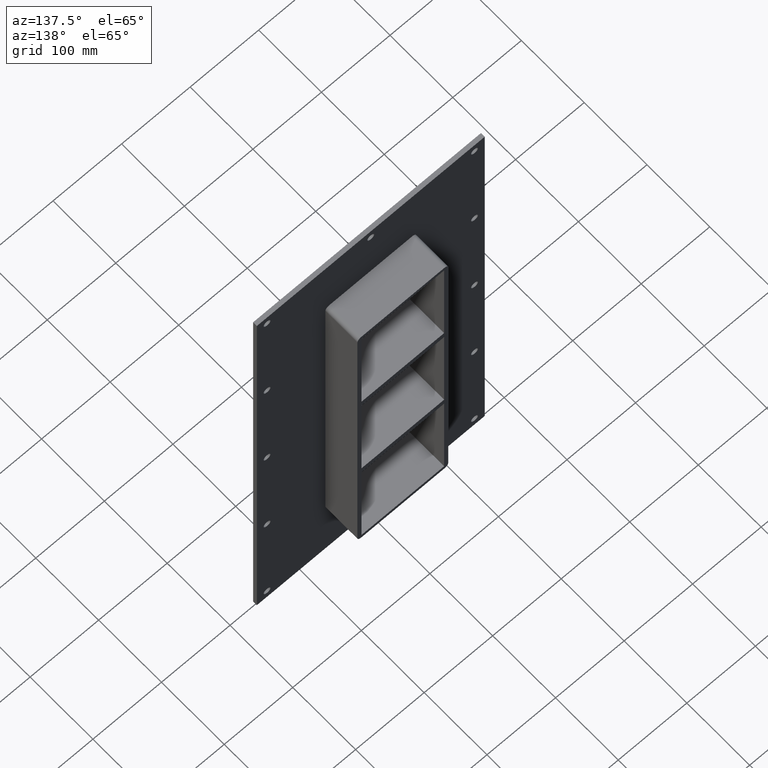
[diagram: clean part render]
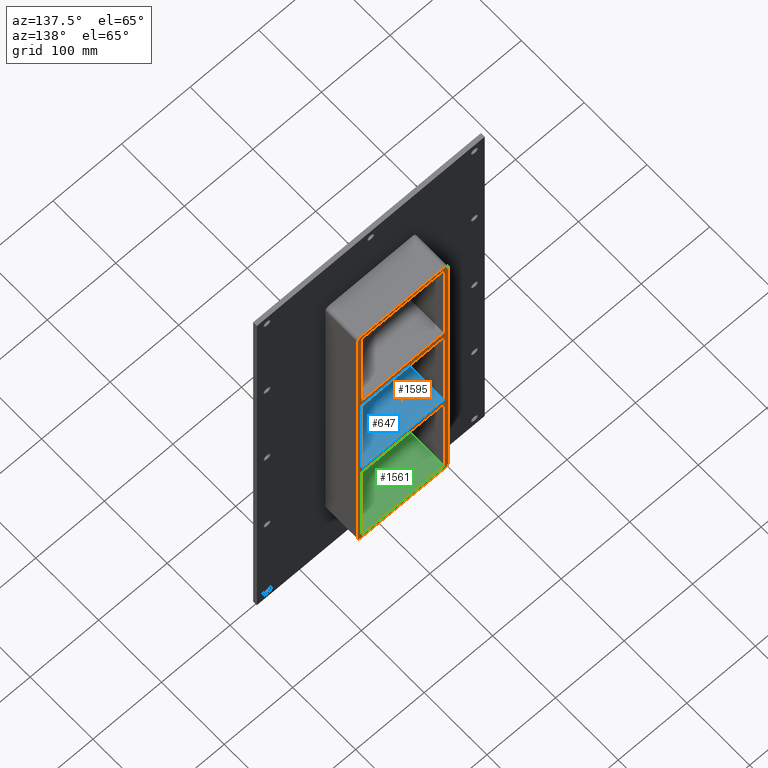
[diagram: same view with three faces highlighted in distinct colors, each labeled with its STEP entity id]
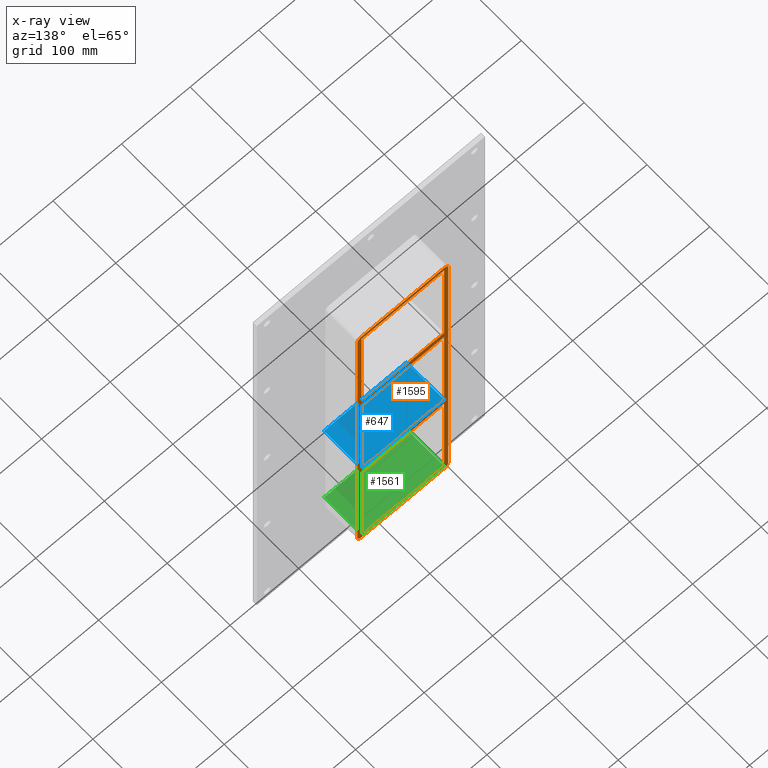
[diagram: x-ray of the same camera — body ghosted, the three highlighted faces saturated]
A machine part, auxiliary view with three faces highlighted in distinct colors.
The next image is the same camera in x-ray (body ghosted, the three faces saturated) — at least one of them is partly hidden behind the body in this view.
Their STEP definitions:

[orange] entity #1595 — the highlighted planar face has unit normal (0, 1, 0).
#419=CARTESIAN_POINT('',(-60.249999999999687,57.0,79.749999999990706));
#420=VERTEX_POINT('',#419);
#427=CARTESIAN_POINT('',(60.249999999996362,57.0,79.749999999990763));
#428=VERTEX_POINT('',#427);
#429=CARTESIAN_POINT('',(60.249999999996362,57.0,79.749999999990763));
#430=DIRECTION('',(-1.0,0.0,0.0));
#431=VECTOR('',#430,120.49999999999605);
#432=LINE('',#429,#431);
#433=EDGE_CURVE('',#428,#420,#432,.T.);
#459=CARTESIAN_POINT('',(60.249999999999901,57.0,89.750000000000085));
#460=VERTEX_POINT('',#459);
#467=CARTESIAN_POINT('',(-60.249999999999687,57.0,89.750000000000085));
#468=VERTEX_POINT('',#467);
#469=CARTESIAN_POINT('',(-60.249999999999687,57.0,89.750000000000085));
#470=DIRECTION('',(1.0,0.0,0.0));
#471=VECTOR('',#470,120.49999999999957);
#472=LINE('',#469,#471);
#473=EDGE_CURVE('',#468,#460,#472,.T.);
#490=CARTESIAN_POINT('',(-60.249999999999986,57.0,249.25000000000009));
#491=VERTEX_POINT('',#490);
#492=CARTESIAN_POINT('',(-60.249999999999986,57.0,249.25000000000011));
#493=DIRECTION('',(0.0,0.0,-1.0));
#494=VECTOR('',#493,159.50000000000006);
#495=LINE('',#492,#494);
#496=EDGE_CURVE('',#491,#468,#495,.T.);
#521=CARTESIAN_POINT('',(60.249999999999901,57.0,-79.749999999999943));
#522=VERTEX_POINT('',#521);
#523=CARTESIAN_POINT('',(60.249999999999986,57.0,-79.749999999999943));
#524=DIRECTION('',(0.0,0.0,1.0));
#525=VECTOR('',#524,159.49999999999071);
#526=LINE('',#523,#525);
#527=EDGE_CURVE('',#522,#428,#526,.T.);
#560=CARTESIAN_POINT('',(60.249999999999986,57.0,249.25000000000009));
#561=VERTEX_POINT('',#560);
#568=CARTESIAN_POINT('',(60.249999999999986,57.0,89.750000000000085));
#569=DIRECTION('',(0.0,0.0,1.0));
#570=VECTOR('',#569,159.5);
#571=LINE('',#568,#570);
#572=EDGE_CURVE('',#460,#561,#571,.T.);
#592=CARTESIAN_POINT('',(-60.249999999999687,57.0,-89.750000000009322));
#593=VERTEX_POINT('',#592);
#600=CARTESIAN_POINT('',(60.249999999996362,57.0,-89.750000000009265));
#601=VERTEX_POINT('',#600);
#602=CARTESIAN_POINT('',(60.249999999996362,57.0,-89.750000000009265));
#603=DIRECTION('',(-1.0,0.0,0.0));
#604=VECTOR('',#603,120.49999999999605);
#605=LINE('',#602,#604);
#606=EDGE_CURVE('',#601,#593,#605,.T.);
#631=CARTESIAN_POINT('',(-60.249999999999687,57.0,-79.749999999999943));
#632=VERTEX_POINT('',#631);
#633=CARTESIAN_POINT('',(-60.249999999999687,57.0,-79.749999999999943));
#634=DIRECTION('',(1.0,0.0,0.0));
#635=VECTOR('',#634,120.49999999999957);
#636=LINE('',#633,#635);
#637=EDGE_CURVE('',#632,#522,#636,.T.);
#661=CARTESIAN_POINT('',(-60.249999999999986,57.0,79.749999999990678));
#662=DIRECTION('',(0.0,0.0,-1.0));
#663=VECTOR('',#662,159.49999999999062);
#664=LINE('',#661,#663);
#665=EDGE_CURVE('',#420,#632,#664,.T.);
#676=CARTESIAN_POINT('',(60.249999999999986,57.0,-249.25));
#677=VERTEX_POINT('',#676);
#678=CARTESIAN_POINT('',(60.249999999999986,57.0,-249.24999999999997));
#679=DIRECTION('',(0.0,0.0,1.0));
#680=VECTOR('',#679,159.49999999999068);
#681=LINE('',#678,#680);
#682=EDGE_CURVE('',#677,#601,#681,.T.);
#1075=CARTESIAN_POINT('',(-60.249999999999986,57.0,-249.25));
#1076=VERTEX_POINT('',#1075);
#1083=CARTESIAN_POINT('',(-60.249999999999986,57.0,-89.750000000009322));
#1084=DIRECTION('',(0.0,0.0,-1.0));
#1085=VECTOR('',#1084,159.49999999999068);
#1086=LINE('',#1083,#1085);
#1087=EDGE_CURVE('',#593,#1076,#1086,.T.);
#1130=CARTESIAN_POINT('',(66.25,57.0,249.25));
#1131=VERTEX_POINT('',#1130);
#1138=CARTESIAN_POINT('',(60.25,57.0,255.25000000000003));
#1139=VERTEX_POINT('',#1138);
#1140=CARTESIAN_POINT('',(60.25,57.0,249.25));
#1141=DIRECTION('',(0.0,-1.0,0.0));
#1142=DIRECTION('',(0.707106781186546,0.0,0.707106781186549));
#1143=AXIS2_PLACEMENT_3D('',#1140,#1141,#1142);
#1144=CIRCLE('',#1143,6.000000000000001);
#1145=EDGE_CURVE('',#1131,#1139,#1144,.T.);
#1186=CARTESIAN_POINT('',(66.25,57.0,-249.25));
#1187=VERTEX_POINT('',#1186);
#1194=CARTESIAN_POINT('',(66.25,57.0,249.25));
#1195=DIRECTION('',(0.0,0.0,-1.0));
#1196=VECTOR('',#1195,498.5);
#1197=LINE('',#1194,#1196);
#1198=EDGE_CURVE('',#1131,#1187,#1197,.T.);
#1259=CARTESIAN_POINT('',(60.25,57.0,-255.25000000000003));
#1260=VERTEX_POINT('',#1259);
#1267=CARTESIAN_POINT('',(60.25,57.0,-249.25));
#1268=DIRECTION('',(0.0,-1.0,0.0));
#1269=DIRECTION('',(0.707106781186546,0.0,-0.707106781186549));
#1270=AXIS2_PLACEMENT_3D('',#1267,#1268,#1269);
#1271=CIRCLE('',#1270,6.000000000000001);
#1272=EDGE_CURVE('',#1260,#1187,#1271,.T.);
#1333=CARTESIAN_POINT('',(-60.25,57.0,-255.25000000000003));
#1334=VERTEX_POINT('',#1333);
#1341=CARTESIAN_POINT('',(60.25,57.0,-255.25000000000003));
#1342=DIRECTION('',(-1.0,0.0,0.0));
#1343=VECTOR('',#1342,120.5);
#1344=LINE('',#1341,#1343);
#1345=EDGE_CURVE('',#1260,#1334,#1344,.T.);
#1443=CARTESIAN_POINT('',(-66.25,57.0,-249.25));
#1444=VERTEX_POINT('',#1443);
#1451=CARTESIAN_POINT('',(-60.25,57.0,-249.25));
#1452=DIRECTION('',(0.0,-1.0,0.0));
#1453=DIRECTION('',(-0.707106781186546,0.0,-0.707106781186549));
#1454=AXIS2_PLACEMENT_3D('',#1451,#1452,#1453);
#1455=CIRCLE('',#1454,6.000000000000001);
#1456=EDGE_CURVE('',#1444,#1334,#1455,.T.);
#1468=CARTESIAN_POINT('',(-66.25,57.0,249.25));
#1469=VERTEX_POINT('',#1468);
#1476=CARTESIAN_POINT('',(-66.25,57.0,-249.25));
#1477=DIRECTION('',(0.0,0.0,1.0));
#1478=VECTOR('',#1477,498.5);
#1479=LINE('',#1476,#1478);
#1480=EDGE_CURVE('',#1444,#1469,#1479,.T.);
#1492=CARTESIAN_POINT('',(-60.25,57.0,255.25000000000003));
#1493=VERTEX_POINT('',#1492);
#1500=CARTESIAN_POINT('',(-60.25,57.0,249.25));
#1501=DIRECTION('',(0.0,-1.0,0.0));
#1502=DIRECTION('',(-0.707106781186546,0.0,0.707106781186549));
#1503=AXIS2_PLACEMENT_3D('',#1500,#1501,#1502);
#1504=CIRCLE('',#1503,6.000000000000001);
#1505=EDGE_CURVE('',#1493,#1469,#1504,.T.);
#1518=CARTESIAN_POINT('',(-60.25,57.0,255.25000000000003));
#1519=DIRECTION('',(1.0,0.0,0.0));
#1520=VECTOR('',#1519,120.5);
#1521=LINE('',#1518,#1520);
#1522=EDGE_CURVE('',#1493,#1139,#1521,.T.);
#1534=CARTESIAN_POINT('',(60.249999999999979,57.0,249.25000000000006));
#1535=DIRECTION('',(-1.0,0.0,0.0));
#1536=VECTOR('',#1535,120.49999999999997);
#1537=LINE('',#1534,#1536);
#1538=EDGE_CURVE('',#561,#491,#1537,.T.);
#1553=CARTESIAN_POINT('',(-60.249999999999979,57.0,-249.25));
#1554=DIRECTION('',(1.0,0.0,0.0));
#1555=VECTOR('',#1554,120.49999999999997);
#1556=LINE('',#1553,#1555);
#1557=EDGE_CURVE('',#1076,#677,#1556,.T.);
#1562=CARTESIAN_POINT('',(0.0,57.0,0.0));
#1563=DIRECTION('',(0.0,1.0,0.0));
#1564=DIRECTION('',(0.0,0.0,1.0));
#1565=AXIS2_PLACEMENT_3D('',#1562,#1563,#1564);
#1566=PLANE('',#1565);
#1567=ORIENTED_EDGE('',*,*,#1272,.F.);
#1568=ORIENTED_EDGE('',*,*,#1345,.T.);
#1569=ORIENTED_EDGE('',*,*,#1456,.F.);
#1570=ORIENTED_EDGE('',*,*,#1480,.T.);
#1571=ORIENTED_EDGE('',*,*,#1505,.F.);
#1572=ORIENTED_EDGE('',*,*,#1522,.T.);
#1573=ORIENTED_EDGE('',*,*,#1145,.F.);
#1574=ORIENTED_EDGE('',*,*,#1198,.T.);
#1575=EDGE_LOOP('',(#1567,#1568,#1569,#1570,#1571,#1572,#1573,#1574));
#1576=FACE_OUTER_BOUND('',#1575,.T.);
#1577=ORIENTED_EDGE('',*,*,#665,.T.);
#1578=ORIENTED_EDGE('',*,*,#637,.T.);
#1579=ORIENTED_EDGE('',*,*,#527,.T.);
#1580=ORIENTED_EDGE('',*,*,#433,.T.);
#1581=EDGE_LOOP('',(#1577,#1578,#1579,#1580));
#1582=FACE_BOUND('',#1581,.T.);
#1583=ORIENTED_EDGE('',*,*,#1087,.T.);
#1584=ORIENTED_EDGE('',*,*,#1557,.T.);
#1585=ORIENTED_EDGE('',*,*,#682,.T.);
#1586=ORIENTED_EDGE('',*,*,#606,.T.);
#1587=EDGE_LOOP('',(#1583,#1584,#1585,#1586));
#1588=FACE_BOUND('',#1587,.T.);
#1589=ORIENTED_EDGE('',*,*,#473,.T.);
#1590=ORIENTED_EDGE('',*,*,#572,.T.);
#1591=ORIENTED_EDGE('',*,*,#1538,.T.);
#1592=ORIENTED_EDGE('',*,*,#496,.T.);
#1593=EDGE_LOOP('',(#1589,#1590,#1591,#1592));
#1594=FACE_BOUND('',#1593,.T.);
#1595=ADVANCED_FACE('',(#1576,#1582,#1588,#1594),#1566,.T.);

[blue] entity #647 — the highlighted planar face has unit normal (0, 0, 1).
#521=CARTESIAN_POINT('',(60.249999999999901,57.0,-79.749999999999943));
#522=VERTEX_POINT('',#521);
#529=CARTESIAN_POINT('',(60.249999999999901,-3.0,-79.749999999999943));
#530=VERTEX_POINT('',#529);
#531=CARTESIAN_POINT('',(60.249999999999986,57.000000000000007,-79.749999999999943));
#532=DIRECTION('',(0.0,-1.0,0.0));
#533=VECTOR('',#532,60.000000000000007);
#534=LINE('',#531,#533);
#535=EDGE_CURVE('',#522,#530,#534,.T.);
#617=CARTESIAN_POINT('',(-60.249999999999687,-3.0,-79.749999999999943));
#618=DIRECTION('',(0.0,0.0,1.0));
#619=DIRECTION('',(1.0,0.0,0.0));
#620=AXIS2_PLACEMENT_3D('',#617,#618,#619);
#621=PLANE('',#620);
#622=CARTESIAN_POINT('',(-60.249999999999687,-3.0,-79.749999999999943));
#623=VERTEX_POINT('',#622);
#624=CARTESIAN_POINT('',(-60.249999999999687,-3.0,-79.749999999999943));
#625=DIRECTION('',(1.0,0.0,0.0));
#626=VECTOR('',#625,120.49999999999957);
#627=LINE('',#624,#626);
#628=EDGE_CURVE('',#623,#530,#627,.T.);
#629=ORIENTED_EDGE('',*,*,#628,.T.);
#630=ORIENTED_EDGE('',*,*,#535,.F.);
#631=CARTESIAN_POINT('',(-60.249999999999687,57.0,-79.749999999999943));
#632=VERTEX_POINT('',#631);
#633=CARTESIAN_POINT('',(-60.249999999999687,57.0,-79.749999999999943));
#634=DIRECTION('',(1.0,0.0,0.0));
#635=VECTOR('',#634,120.49999999999957);
#636=LINE('',#633,#635);
#637=EDGE_CURVE('',#632,#522,#636,.T.);
#638=ORIENTED_EDGE('',*,*,#637,.F.);
#639=CARTESIAN_POINT('',(-60.249999999999986,-3.0,-79.749999999999929));
#640=DIRECTION('',(0.0,1.0,0.0));
#641=VECTOR('',#640,60.000000000000007);
#642=LINE('',#639,#641);
#643=EDGE_CURVE('',#623,#632,#642,.T.);
#644=ORIENTED_EDGE('',*,*,#643,.F.);
#645=EDGE_LOOP('',(#629,#630,#638,#644));
#646=FACE_OUTER_BOUND('',#645,.T.);
#647=ADVANCED_FACE('',(#646),#621,.T.);

[green] entity #1561 — the highlighted planar face has unit normal (0, 0, -1).
#676=CARTESIAN_POINT('',(60.249999999999986,57.0,-249.25));
#677=VERTEX_POINT('',#676);
#684=CARTESIAN_POINT('',(60.249999999999986,-3.0,-249.25));
#685=VERTEX_POINT('',#684);
#686=CARTESIAN_POINT('',(60.249999999999986,56.999999999999993,-249.25));
#687=DIRECTION('',(0.0,-1.0,0.0));
#688=VECTOR('',#687,59.999999999999993);
#689=LINE('',#686,#688);
#690=EDGE_CURVE('',#677,#685,#689,.T.);
#1067=CARTESIAN_POINT('',(-60.249999999999986,-3.0,-249.25));
#1068=VERTEX_POINT('',#1067);
#1075=CARTESIAN_POINT('',(-60.249999999999986,57.0,-249.25));
#1076=VERTEX_POINT('',#1075);
#1077=CARTESIAN_POINT('',(-60.249999999999986,-3.0,-249.25));
#1078=DIRECTION('',(0.0,1.0,0.0));
#1079=VECTOR('',#1078,60.0);
#1080=LINE('',#1077,#1079);
#1081=EDGE_CURVE('',#1068,#1076,#1080,.T.);
#1427=CARTESIAN_POINT('',(60.249999999999986,-3.0,-249.25));
#1428=DIRECTION('',(-1.0,0.0,0.0));
#1429=VECTOR('',#1428,120.49999999999997);
#1430=LINE('',#1427,#1429);
#1431=EDGE_CURVE('',#685,#1068,#1430,.T.);
#1545=CARTESIAN_POINT('',(60.249999999999986,0.0,-249.25));
#1546=DIRECTION('',(0.0,0.0,-1.0));
#1547=DIRECTION('',(-1.0,0.0,0.0));
#1548=AXIS2_PLACEMENT_3D('',#1545,#1546,#1547);
#1549=PLANE('',#1548);
#1550=ORIENTED_EDGE('',*,*,#1081,.F.);
#1551=ORIENTED_EDGE('',*,*,#1431,.F.);
#1552=ORIENTED_EDGE('',*,*,#690,.F.);
#1553=CARTESIAN_POINT('',(-60.249999999999979,57.0,-249.25));
#1554=DIRECTION('',(1.0,0.0,0.0));
#1555=VECTOR('',#1554,120.49999999999997);
#1556=LINE('',#1553,#1555);
#1557=EDGE_CURVE('',#1076,#677,#1556,.T.);
#1558=ORIENTED_EDGE('',*,*,#1557,.F.);
#1559=EDGE_LOOP('',(#1550,#1551,#1552,#1558));
#1560=FACE_OUTER_BOUND('',#1559,.T.);
#1561=ADVANCED_FACE('',(#1560),#1549,.F.);